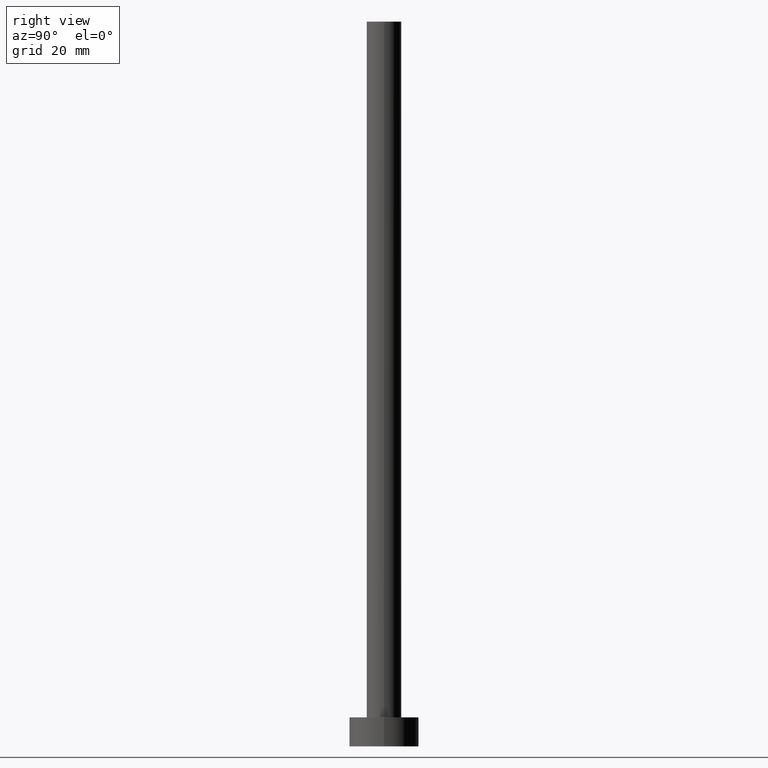
[diagram: clean part render]
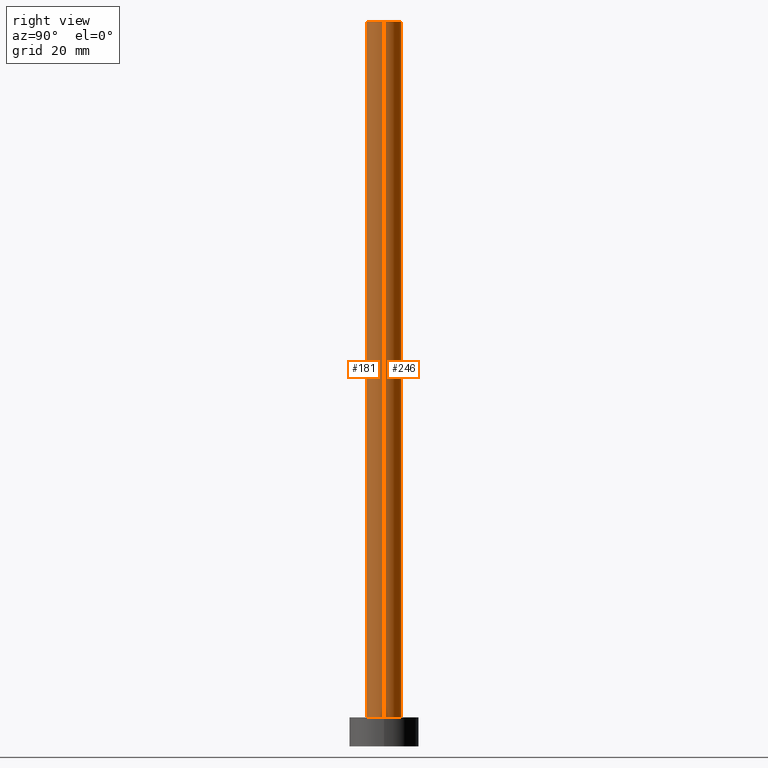
[diagram: same view with one multi-face feature highlighted, each face labeled with its STEP entity id]
A machine part, right view. The highlighted faces form ONE feature: a constant-radius fillet chain: 2 tangent blend faces with common blend radius 3 mm. The faces share edges in the B-rep.
Their STEP definitions:
[1] entity #246 (Cylinder):
#6 = DIRECTION ( 'NONE',  ( -0.000000000000000000, -0.000000000000000000, -1.000000000000000000 ) ) ;
#16 = AXIS2_PLACEMENT_3D ( 'NONE', #126, #26, #48 ) ;
#26 = DIRECTION ( 'NONE',  ( 0.000000000000000000, 0.000000000000000000, 1.000000000000000000 ) ) ;
#29 = ORIENTED_EDGE ( 'NONE', *, *, #209, .T. ) ;
#33 = CARTESIAN_POINT ( 'NONE',  ( 0.000000000000000000, 0.000000000000000000, 125.0000000000000000 ) ) ;
#36 = CARTESIAN_POINT ( 'NONE',  ( -3.000000000000000444, 0.000000000000000000, 5.000000000000000000 ) ) ;
#44 = EDGE_CURVE ( 'NONE', #163, #227, #141, .T. ) ;
#48 = DIRECTION ( 'NONE',  ( 1.000000000000000000, 0.000000000000000000, 0.000000000000000000 ) ) ;
#53 = CARTESIAN_POINT ( 'NONE',  ( 3.000000000000000444, 3.673940397442060361E-16, 5.000000000000000000 ) ) ;
#60 = DIRECTION ( 'NONE',  ( 0.000000000000000000, 0.000000000000000000, 1.000000000000000000 ) ) ;
#64 = VECTOR ( 'NONE', #110, 1000.000000000000000 ) ;
#67 = DIRECTION ( 'NONE',  ( -0.000000000000000000, -0.000000000000000000, -1.000000000000000000 ) ) ;
#84 = EDGE_CURVE ( 'NONE', #201, #227, #147, .T. ) ;
#89 = CYLINDRICAL_SURFACE ( 'NONE', #193, 3.000000000000000444 ) ;
#100 = EDGE_CURVE ( 'NONE', #237, #163, #164, .T. ) ;
#110 = DIRECTION ( 'NONE',  ( -0.000000000000000000, -0.000000000000000000, -1.000000000000000000 ) ) ;
#114 = VECTOR ( 'NONE', #6, 1000.000000000000000 ) ;
#122 = ORIENTED_EDGE ( 'NONE', *, *, #100, .F. ) ;
#123 = EDGE_LOOP ( 'NONE', ( #122, #29, #161, #177 ) ) ;
#126 = CARTESIAN_POINT ( 'NONE',  ( 0.000000000000000000, 0.000000000000000000, 125.0000000000000000 ) ) ;
#129 = FACE_OUTER_BOUND ( 'NONE', #123, .T. ) ;
#130 = CARTESIAN_POINT ( 'NONE',  ( -3.000000000000000444, 0.000000000000000000, 125.0000000000000000 ) ) ;
#139 = AXIS2_PLACEMENT_3D ( 'NONE', #243, #60, #144 ) ;
#141 = LINE ( 'NONE', #225, #114 ) ;
#144 = DIRECTION ( 'NONE',  ( 1.000000000000000000, 0.000000000000000000, 0.000000000000000000 ) ) ;
#147 = CIRCLE ( 'NONE', #139, 3.000000000000000444 ) ;
#148 = CARTESIAN_POINT ( 'NONE',  ( 3.000000000000000444, 3.673940397442060361E-16, 125.0000000000000000 ) ) ;
#150 = DIRECTION ( 'NONE',  ( -1.000000000000000000, 0.000000000000000000, 0.000000000000000000 ) ) ;
#161 = ORIENTED_EDGE ( 'NONE', *, *, #84, .T. ) ;
#163 = VERTEX_POINT ( 'NONE', #130 ) ;
#164 = CIRCLE ( 'NONE', #16, 3.000000000000000444 ) ;
#177 = ORIENTED_EDGE ( 'NONE', *, *, #44, .F. ) ;
#189 = CARTESIAN_POINT ( 'NONE',  ( 3.000000000000000444, 3.673940397442060361E-16, 125.0000000000000000 ) ) ;
#193 = AXIS2_PLACEMENT_3D ( 'NONE', #33, #67, #150 ) ;
#201 = VERTEX_POINT ( 'NONE', #53 ) ;
#207 = LINE ( 'NONE', #148, #64 ) ;
#209 = EDGE_CURVE ( 'NONE', #237, #201, #207, .T. ) ;
#225 = CARTESIAN_POINT ( 'NONE',  ( -3.000000000000000444, 0.000000000000000000, 125.0000000000000000 ) ) ;
#227 = VERTEX_POINT ( 'NONE', #36 ) ;
#237 = VERTEX_POINT ( 'NONE', #189 ) ;
#243 = CARTESIAN_POINT ( 'NONE',  ( 0.000000000000000000, 0.000000000000000000, 5.000000000000000000 ) ) ;
#246 = ADVANCED_FACE ( 'NONE', ( #129 ), #89, .T. ) ;
[2] entity #181 (Cylinder):
#3 = CIRCLE ( 'NONE', #20, 3.000000000000000444 ) ;
#6 = DIRECTION ( 'NONE',  ( -0.000000000000000000, -0.000000000000000000, -1.000000000000000000 ) ) ;
#15 = DIRECTION ( 'NONE',  ( 0.000000000000000000, 0.000000000000000000, 1.000000000000000000 ) ) ;
#20 = AXIS2_PLACEMENT_3D ( 'NONE', #165, #101, #180 ) ;
#31 = CARTESIAN_POINT ( 'NONE',  ( 0.000000000000000000, 0.000000000000000000, 125.0000000000000000 ) ) ;
#32 = AXIS2_PLACEMENT_3D ( 'NONE', #132, #15, #169 ) ;
#36 = CARTESIAN_POINT ( 'NONE',  ( -3.000000000000000444, 0.000000000000000000, 5.000000000000000000 ) ) ;
#37 = AXIS2_PLACEMENT_3D ( 'NONE', #31, #91, #65 ) ;
#41 = EDGE_LOOP ( 'NONE', ( #145, #105, #202, #226 ) ) ;
#44 = EDGE_CURVE ( 'NONE', #163, #227, #141, .T. ) ;
#46 = CIRCLE ( 'NONE', #32, 3.000000000000000444 ) ;
#53 = CARTESIAN_POINT ( 'NONE',  ( 3.000000000000000444, 3.673940397442060361E-16, 5.000000000000000000 ) ) ;
#64 = VECTOR ( 'NONE', #110, 1000.000000000000000 ) ;
#65 = DIRECTION ( 'NONE',  ( -1.000000000000000000, 0.000000000000000000, 0.000000000000000000 ) ) ;
#71 = EDGE_CURVE ( 'NONE', #163, #237, #3, .T. ) ;
#91 = DIRECTION ( 'NONE',  ( -0.000000000000000000, -0.000000000000000000, -1.000000000000000000 ) ) ;
#101 = DIRECTION ( 'NONE',  ( 0.000000000000000000, 0.000000000000000000, 1.000000000000000000 ) ) ;
#105 = ORIENTED_EDGE ( 'NONE', *, *, #71, .F. ) ;
#110 = DIRECTION ( 'NONE',  ( -0.000000000000000000, -0.000000000000000000, -1.000000000000000000 ) ) ;
#114 = VECTOR ( 'NONE', #6, 1000.000000000000000 ) ;
#130 = CARTESIAN_POINT ( 'NONE',  ( -3.000000000000000444, 0.000000000000000000, 125.0000000000000000 ) ) ;
#131 = EDGE_CURVE ( 'NONE', #227, #201, #46, .T. ) ;
#132 = CARTESIAN_POINT ( 'NONE',  ( 0.000000000000000000, 0.000000000000000000, 5.000000000000000000 ) ) ;
#141 = LINE ( 'NONE', #225, #114 ) ;
#145 = ORIENTED_EDGE ( 'NONE', *, *, #209, .F. ) ;
#148 = CARTESIAN_POINT ( 'NONE',  ( 3.000000000000000444, 3.673940397442060361E-16, 125.0000000000000000 ) ) ;
#163 = VERTEX_POINT ( 'NONE', #130 ) ;
#165 = CARTESIAN_POINT ( 'NONE',  ( 0.000000000000000000, 0.000000000000000000, 125.0000000000000000 ) ) ;
#169 = DIRECTION ( 'NONE',  ( 1.000000000000000000, 0.000000000000000000, 0.000000000000000000 ) ) ;
#171 = FACE_OUTER_BOUND ( 'NONE', #41, .T. ) ;
#180 = DIRECTION ( 'NONE',  ( 1.000000000000000000, 0.000000000000000000, 0.000000000000000000 ) ) ;
#181 = ADVANCED_FACE ( 'NONE', ( #171 ), #213, .T. ) ;
#189 = CARTESIAN_POINT ( 'NONE',  ( 3.000000000000000444, 3.673940397442060361E-16, 125.0000000000000000 ) ) ;
#201 = VERTEX_POINT ( 'NONE', #53 ) ;
#202 = ORIENTED_EDGE ( 'NONE', *, *, #44, .T. ) ;
#207 = LINE ( 'NONE', #148, #64 ) ;
#209 = EDGE_CURVE ( 'NONE', #237, #201, #207, .T. ) ;
#213 = CYLINDRICAL_SURFACE ( 'NONE', #37, 3.000000000000000444 ) ;
#225 = CARTESIAN_POINT ( 'NONE',  ( -3.000000000000000444, 0.000000000000000000, 125.0000000000000000 ) ) ;
#226 = ORIENTED_EDGE ( 'NONE', *, *, #131, .T. ) ;
#227 = VERTEX_POINT ( 'NONE', #36 ) ;
#237 = VERTEX_POINT ( 'NONE', #189 ) ;